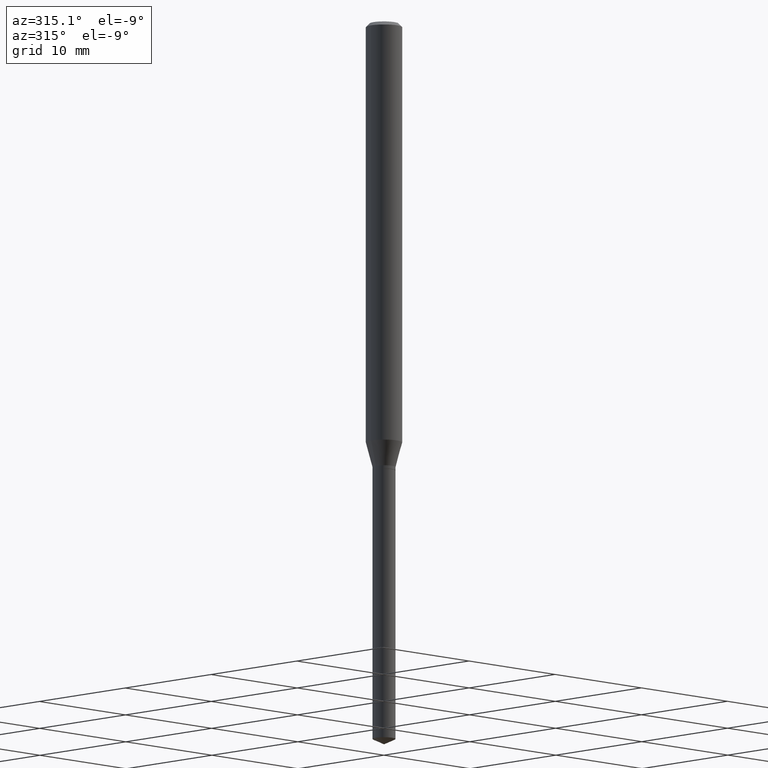
[diagram: clean part render]
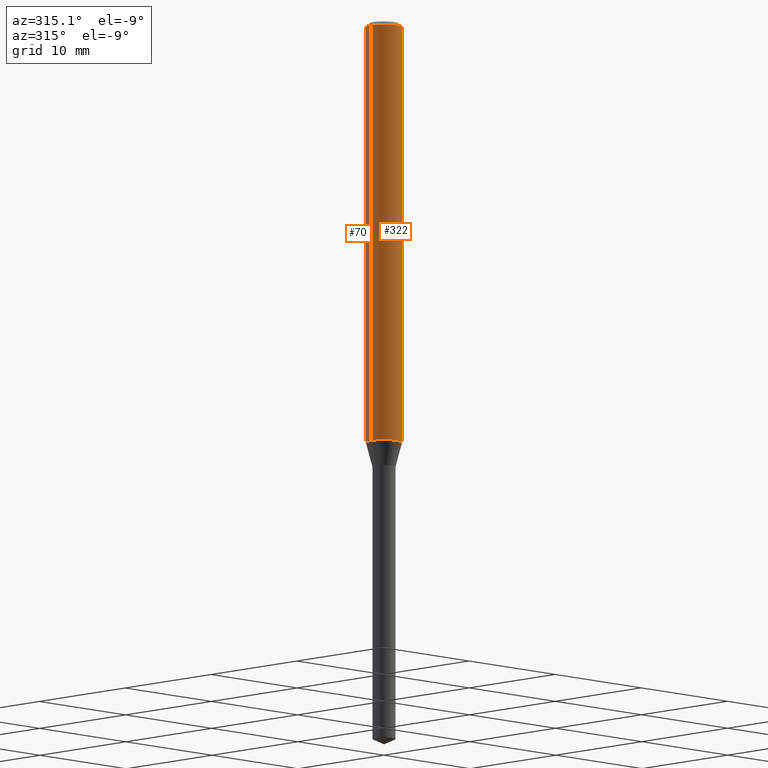
[diagram: same view with one multi-face feature highlighted, each face labeled with its STEP entity id]
A machine part, auxiliary view. The highlighted faces form ONE feature: a constant-radius fillet chain: 2 tangent blend faces with common blend radius 1.4999 mm. The faces share edges in the B-rep.
Their STEP definitions:
[1] entity #322 (Cylinder):
#23 = CYLINDRICAL_SURFACE ( 'NONE', #58, 0.05905000000000008159 ) ;
#35 = ORIENTED_EDGE ( 'NONE', *, *, #143, .F. ) ;
#42 = VECTOR ( 'NONE', #434, 39.37007874015748143 ) ;
#58 = AXIS2_PLACEMENT_3D ( 'NONE', #126, #481, #291 ) ;
#66 = CARTESIAN_POINT ( 'NONE',  ( 0.05904999999999999832, -4.535783407291118600E-16, -0.01181000000000007565 ) ) ;
#76 = ORIENTED_EDGE ( 'NONE', *, *, #98, .F. ) ;
#80 = CARTESIAN_POINT ( 'NONE',  ( 3.356164079663623520E-29, -4.791712830114137325E-15, -1.372401100016133801 ) ) ;
#98 = EDGE_CURVE ( 'NONE', #130, #411, #435, .T. ) ;
#99 = CARTESIAN_POINT ( 'NONE',  ( 0.05905000000000017180, -5.204056776231511456E-15, -1.372401100016133801 ) ) ;
#108 = CARTESIAN_POINT ( 'NONE',  ( 2.888098660104664642E-31, -4.123439461173780879E-17, -0.01181000000000007565 ) ) ;
#118 = CARTESIAN_POINT ( 'NONE',  ( -0.05904999999999999832, -1.996898126896595667E-15, -0.01181000000000007565 ) ) ;
#126 = CARTESIAN_POINT ( 'NONE',  ( 0.000000000000000000, 0.000000000000000000, 0.000000000000000000 ) ) ;
#128 = ORIENTED_EDGE ( 'NONE', *, *, #466, .T. ) ;
#129 = CARTESIAN_POINT ( 'NONE',  ( 0.05905000000000008159, -4.123439461173746736E-16, 2.879382386107504424E-30 ) ) ;
#130 = VERTEX_POINT ( 'NONE', #118 ) ;
#140 = DIRECTION ( 'NONE',  ( 1.000000000000000000, -6.982962677686268288E-15, 0.000000000000000000 ) ) ;
#143 = EDGE_CURVE ( 'NONE', #331, #130, #153, .T. ) ;
#153 = LINE ( 'NONE', #192, #42 ) ;
#163 = AXIS2_PLACEMENT_3D ( 'NONE', #108, #382, #277 ) ;
#182 = DIRECTION ( 'NONE',  ( -2.445468806185136597E-29, 3.491481338843145583E-15, 1.000000000000000000 ) ) ;
#192 = CARTESIAN_POINT ( 'NONE',  ( -0.05905000000000008159, 4.195754854663397395E-16, -2.904631170795525745E-30 ) ) ;
#241 = CIRCLE ( 'NONE', #250, 0.05905000000000017180 ) ;
#250 = AXIS2_PLACEMENT_3D ( 'NONE', #80, #182, #140 ) ;
#277 = DIRECTION ( 'NONE',  ( 1.000000000000000000, -6.982962677686266711E-15, 0.000000000000000000 ) ) ;
#288 = DIRECTION ( 'NONE',  ( -2.445468806185136877E-29, 3.491481338843145188E-15, 1.000000000000000000 ) ) ;
#291 = DIRECTION ( 'NONE',  ( 1.000000000000000000, -6.982962677686267499E-15, 4.876176775795936353E-29 ) ) ;
#321 = LINE ( 'NONE', #129, #471 ) ;
#322 = ADVANCED_FACE ( 'NONE', ( #437 ), #23, .T. ) ;
#326 = ORIENTED_EDGE ( 'NONE', *, *, #399, .T. ) ;
#331 = VERTEX_POINT ( 'NONE', #350 ) ;
#350 = CARTESIAN_POINT ( 'NONE',  ( -0.05905000000000017180, -4.372137344647797043E-15, -1.372401100016133801 ) ) ;
#357 = VERTEX_POINT ( 'NONE', #99 ) ;
#365 = EDGE_LOOP ( 'NONE', ( #35, #128, #326, #76 ) ) ;
#382 = DIRECTION ( 'NONE',  ( -2.445468806185136597E-29, 3.491481338843145583E-15, 1.000000000000000000 ) ) ;
#399 = EDGE_CURVE ( 'NONE', #357, #411, #321, .T. ) ;
#411 = VERTEX_POINT ( 'NONE', #66 ) ;
#434 = DIRECTION ( 'NONE',  ( -2.445468806185136877E-29, 3.491481338843145188E-15, 1.000000000000000000 ) ) ;
#435 = CIRCLE ( 'NONE', #163, 0.05904999999999999832 ) ;
#437 = FACE_OUTER_BOUND ( 'NONE', #365, .T. ) ;
#466 = EDGE_CURVE ( 'NONE', #331, #357, #241, .T. ) ;
#471 = VECTOR ( 'NONE', #288, 39.37007874015748143 ) ;
#481 = DIRECTION ( 'NONE',  ( -2.445468806185136597E-29, 3.491481338843145583E-15, 1.000000000000000000 ) ) ;
[2] entity #70 (Cylinder):
#2 = CARTESIAN_POINT ( 'NONE',  ( 3.356164079663623520E-29, -4.791712830114137325E-15, -1.372401100016133801 ) ) ;
#5 = AXIS2_PLACEMENT_3D ( 'NONE', #310, #49, #193 ) ;
#33 = ORIENTED_EDGE ( 'NONE', *, *, #478, .T. ) ;
#42 = VECTOR ( 'NONE', #434, 39.37007874015748143 ) ;
#49 = DIRECTION ( 'NONE',  ( -2.445468806185136597E-29, 3.491481338843145583E-15, 1.000000000000000000 ) ) ;
#66 = CARTESIAN_POINT ( 'NONE',  ( 0.05904999999999999832, -4.535783407291118600E-16, -0.01181000000000007565 ) ) ;
#70 = ADVANCED_FACE ( 'NONE', ( #107 ), #257, .T. ) ;
#73 = CARTESIAN_POINT ( 'NONE',  ( 0.000000000000000000, 0.000000000000000000, 0.000000000000000000 ) ) ;
#99 = CARTESIAN_POINT ( 'NONE',  ( 0.05905000000000017180, -5.204056776231511456E-15, -1.372401100016133801 ) ) ;
#107 = FACE_OUTER_BOUND ( 'NONE', #484, .T. ) ;
#118 = CARTESIAN_POINT ( 'NONE',  ( -0.05904999999999999832, -1.996898126896595667E-15, -0.01181000000000007565 ) ) ;
#129 = CARTESIAN_POINT ( 'NONE',  ( 0.05905000000000008159, -4.123439461173746736E-16, 2.879382386107504424E-30 ) ) ;
#130 = VERTEX_POINT ( 'NONE', #118 ) ;
#135 = ORIENTED_EDGE ( 'NONE', *, *, #232, .F. ) ;
#143 = EDGE_CURVE ( 'NONE', #331, #130, #153, .T. ) ;
#153 = LINE ( 'NONE', #192, #42 ) ;
#157 = CIRCLE ( 'NONE', #5, 0.05904999999999999832 ) ;
#180 = DIRECTION ( 'NONE',  ( -2.445468806185136597E-29, 3.491481338843145583E-15, 1.000000000000000000 ) ) ;
#186 = DIRECTION ( 'NONE',  ( 1.000000000000000000, -6.982962677686268288E-15, 0.000000000000000000 ) ) ;
#192 = CARTESIAN_POINT ( 'NONE',  ( -0.05905000000000008159, 4.195754854663397395E-16, -2.904631170795525745E-30 ) ) ;
#193 = DIRECTION ( 'NONE',  ( 1.000000000000000000, -6.982962677686266711E-15, 0.000000000000000000 ) ) ;
#217 = DIRECTION ( 'NONE',  ( -2.445468806185136597E-29, 3.491481338843145583E-15, 1.000000000000000000 ) ) ;
#232 = EDGE_CURVE ( 'NONE', #411, #130, #157, .T. ) ;
#257 = CYLINDRICAL_SURFACE ( 'NONE', #480, 0.05905000000000008159 ) ;
#260 = AXIS2_PLACEMENT_3D ( 'NONE', #2, #217, #186 ) ;
#288 = DIRECTION ( 'NONE',  ( -2.445468806185136877E-29, 3.491481338843145188E-15, 1.000000000000000000 ) ) ;
#289 = ORIENTED_EDGE ( 'NONE', *, *, #143, .T. ) ;
#299 = DIRECTION ( 'NONE',  ( 1.000000000000000000, -6.982962677686267499E-15, 4.876176775795936353E-29 ) ) ;
#310 = CARTESIAN_POINT ( 'NONE',  ( 2.888098660104664642E-31, -4.123439461173780879E-17, -0.01181000000000007565 ) ) ;
#321 = LINE ( 'NONE', #129, #471 ) ;
#331 = VERTEX_POINT ( 'NONE', #350 ) ;
#350 = CARTESIAN_POINT ( 'NONE',  ( -0.05905000000000017180, -4.372137344647797043E-15, -1.372401100016133801 ) ) ;
#357 = VERTEX_POINT ( 'NONE', #99 ) ;
#386 = CIRCLE ( 'NONE', #260, 0.05905000000000017180 ) ;
#399 = EDGE_CURVE ( 'NONE', #357, #411, #321, .T. ) ;
#401 = ORIENTED_EDGE ( 'NONE', *, *, #399, .F. ) ;
#411 = VERTEX_POINT ( 'NONE', #66 ) ;
#434 = DIRECTION ( 'NONE',  ( -2.445468806185136877E-29, 3.491481338843145188E-15, 1.000000000000000000 ) ) ;
#471 = VECTOR ( 'NONE', #288, 39.37007874015748143 ) ;
#478 = EDGE_CURVE ( 'NONE', #357, #331, #386, .T. ) ;
#480 = AXIS2_PLACEMENT_3D ( 'NONE', #73, #180, #299 ) ;
#484 = EDGE_LOOP ( 'NONE', ( #33, #289, #135, #401 ) ) ;